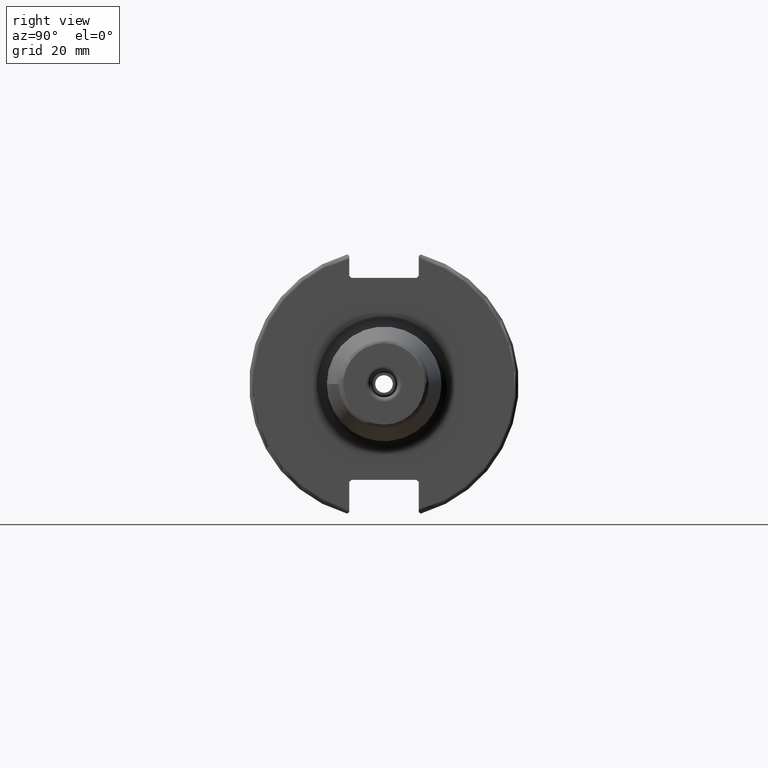
[diagram: clean part render]
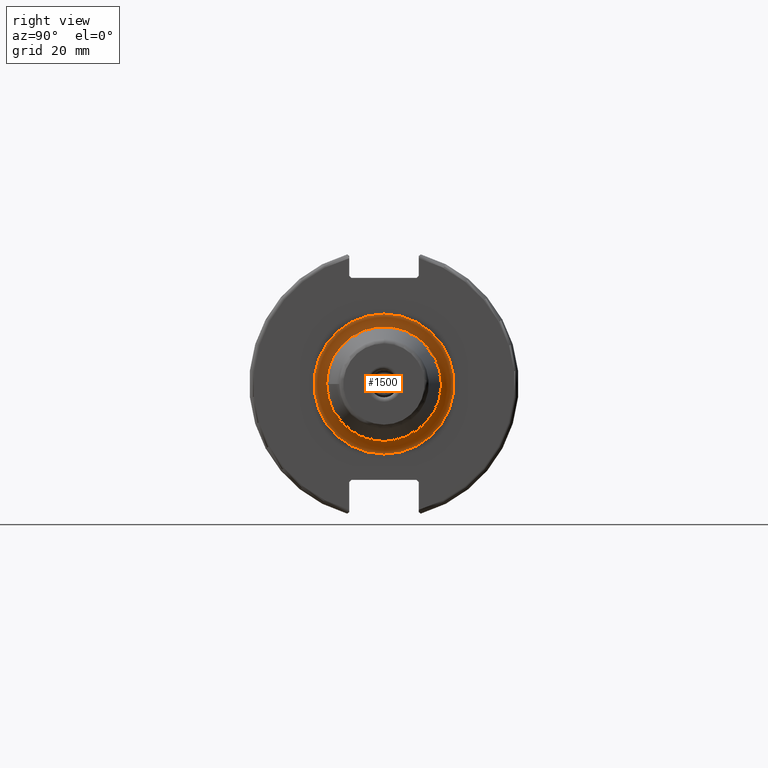
[diagram: same view with one face highlighted and labeled with its STEP entity id]
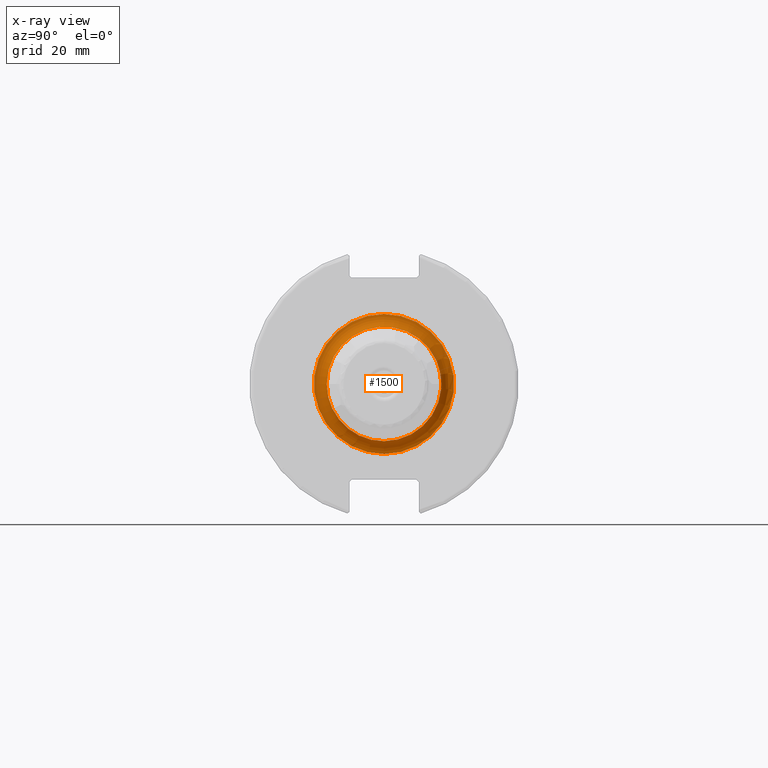
[diagram: x-ray of the same camera — body ghosted, the highlighted face saturated]
A machine part, right view. The second image highlights one B-rep face of the part: STEP entity #1500.
The next image is the same camera in x-ray: the body ghosted, the highlighted face saturated — about 0% of this face is hidden behind the body in this view.
In plain terms, the highlighted toroidal blend (fillet) surface has major radius 16.5 mm and minor (blend) radius 3 mm.
Its self-contained STEP definition (entity closure, byte-faithful):
#367=FACE_OUTER_BOUND('',#456,.T.);
#456=EDGE_LOOP('',(#1040,#1041,#1042,#1043,#1044));
#564=CIRCLE('',#1622,13.5);
#565=CIRCLE('',#1623,3.);
#566=CIRCLE('',#1624,16.5);
#567=CIRCLE('',#1625,13.5);
#638=VERTEX_POINT('',#2275);
#639=VERTEX_POINT('',#2276);
#640=VERTEX_POINT('',#2278);
#796=EDGE_CURVE('',#638,#639,#564,.T.);
#797=EDGE_CURVE('',#639,#640,#565,.T.);
#798=EDGE_CURVE('',#640,#640,#566,.T.);
#799=EDGE_CURVE('',#639,#638,#567,.T.);
#1040=ORIENTED_EDGE('',*,*,#796,.T.);
#1041=ORIENTED_EDGE('',*,*,#797,.T.);
#1042=ORIENTED_EDGE('',*,*,#798,.T.);
#1043=ORIENTED_EDGE('',*,*,#797,.F.);
#1044=ORIENTED_EDGE('',*,*,#799,.T.);
#1488=TOROIDAL_SURFACE('',#1621,16.5,3.);
#1500=ADVANCED_FACE('',(#367),#1488,.F.);
#1621=AXIS2_PLACEMENT_3D('',#2274,#1822,#1823);
#1622=AXIS2_PLACEMENT_3D('',#2277,#1824,#1825);
#1623=AXIS2_PLACEMENT_3D('',#2279,#1826,#1827);
#1624=AXIS2_PLACEMENT_3D('',#2280,#1828,#1829);
#1625=AXIS2_PLACEMENT_3D('',#2281,#1830,#1831);
#1822=DIRECTION('center_axis',(-1.,0.,0.));
#1823=DIRECTION('ref_axis',(0.,0.,1.));
#1824=DIRECTION('center_axis',(-1.,0.,0.));
#1825=DIRECTION('ref_axis',(0.,-1.,-1.22464679914735E-16));
#1826=DIRECTION('center_axis',(0.,-1.,1.22464679914735E-16));
#1827=DIRECTION('ref_axis',(0.,-1.22464679914735E-16,-1.));
#1828=DIRECTION('center_axis',(1.,0.,0.));
#1829=DIRECTION('ref_axis',(0.,-1.,-1.22464679914735E-16));
#1830=DIRECTION('center_axis',(-1.,0.,0.));
#1831=DIRECTION('ref_axis',(0.,-1.,-1.22464679914735E-16));
#2274=CARTESIAN_POINT('Origin',(22.05,0.,0.));
#2275=CARTESIAN_POINT('',(22.05,-13.5,-1.65327317884893E-15));
#2276=CARTESIAN_POINT('',(22.05,-1.65327317884893E-15,-13.5));
#2277=CARTESIAN_POINT('Origin',(22.05,0.,0.));
#2278=CARTESIAN_POINT('',(19.05,-2.02066721859313E-15,-16.5));
#2279=CARTESIAN_POINT('Origin',(22.05,-2.02066721859313E-15,-16.5));
#2280=CARTESIAN_POINT('Origin',(19.05,0.,0.));
#2281=CARTESIAN_POINT('Origin',(22.05,0.,0.));